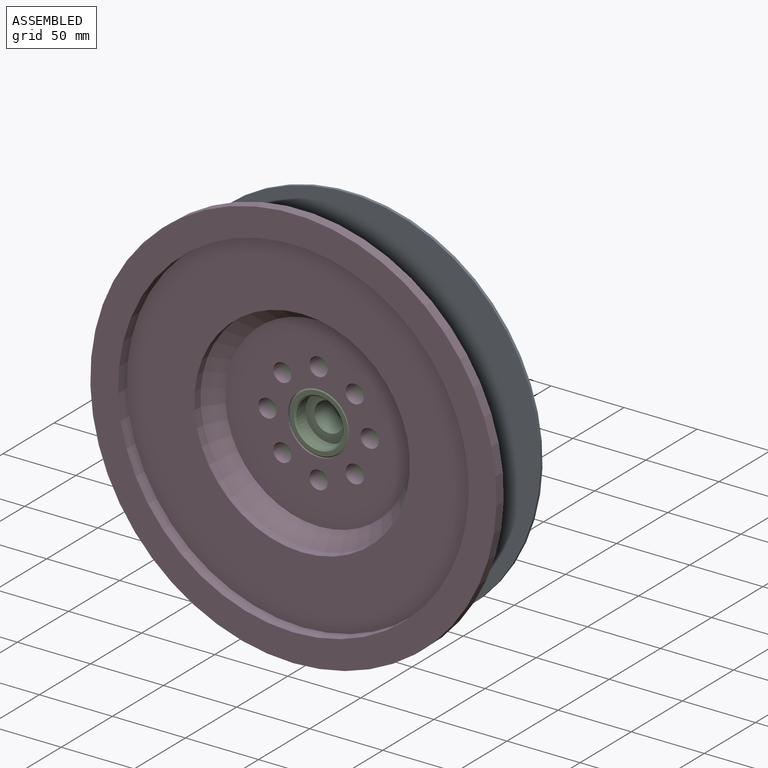
[diagram: assembled view]
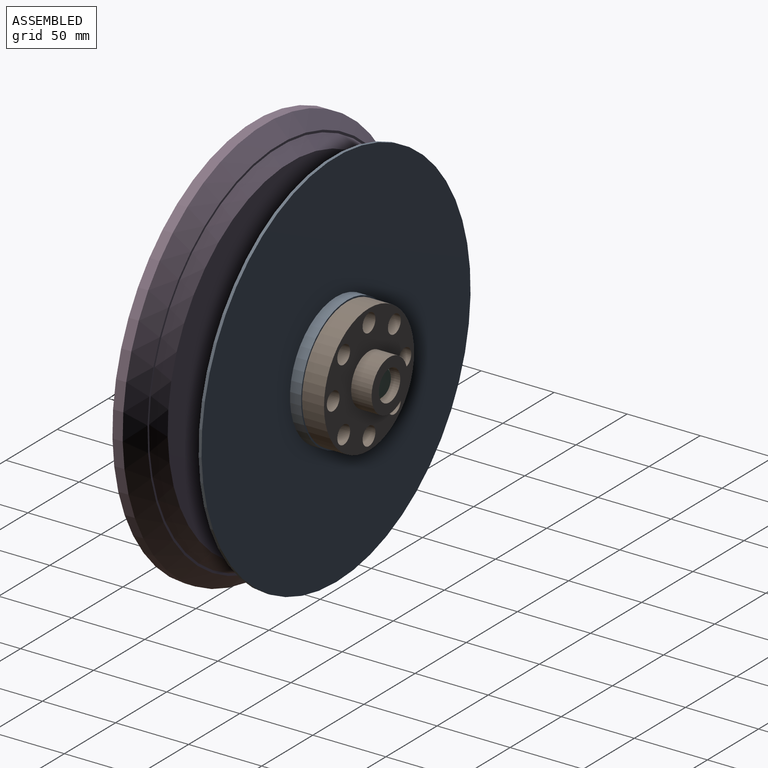
[diagram: assembled view, second angle]
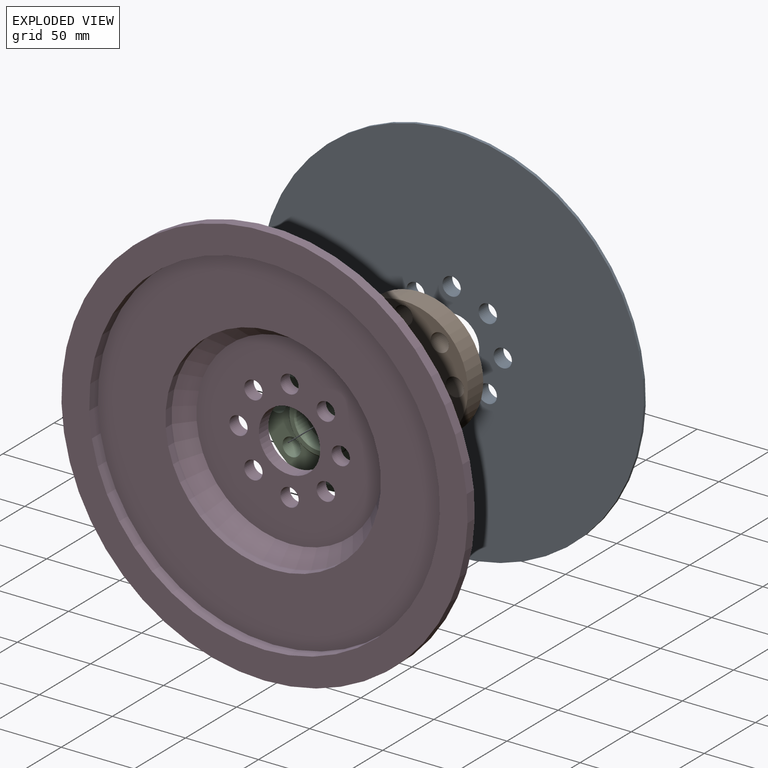
[diagram: exploded view]
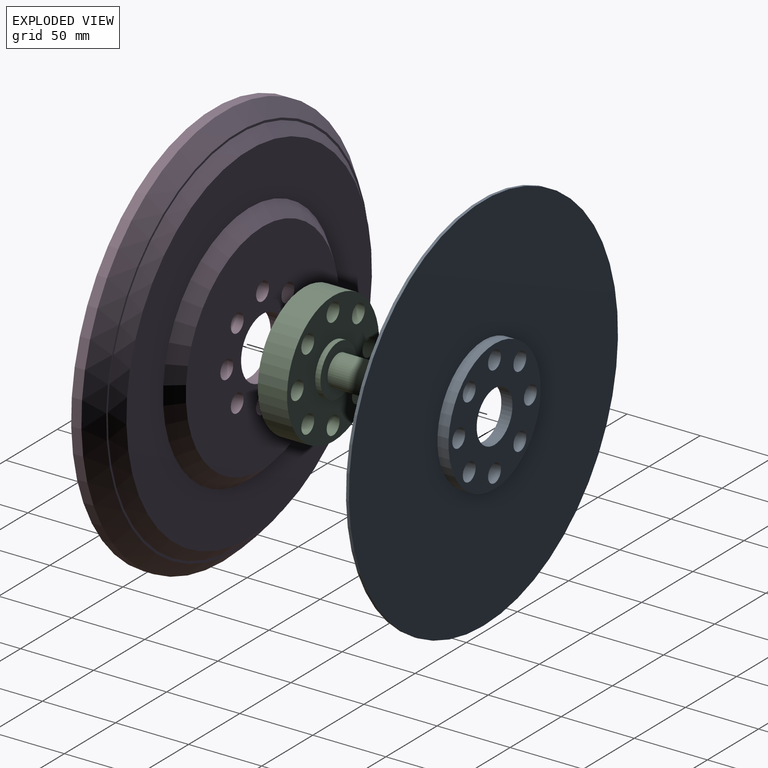
[diagram: exploded view, second angle]
ASSEMBLY  parts=4 mates=4
PART A: 16 faces, bbox 263x9.6x263 mm
  f0: plane 42x42mm, normal (0,1,0), area 423.3mm2, adj f2,f13
  f1: cylinder r=6.25mm len=12.5mm, axis (0,1,0), area 377mm2, adj f11,f14
  f2: cylinder r=17.5mm len=35mm, axis (0,1,0), area 835.7mm2, adj f0,f11
  f3: cylinder r=6.25mm len=12.5mm, axis (0,1,0), area 377mm2, adj f11,f14
  f4: cylinder r=6.25mm len=12.5mm, axis (0,1,0), area 377mm2, adj f11,f14
  f5: cylinder r=6.25mm len=12.5mm, axis (0,1,0), area 377mm2, adj f11,f14
  f6: cylinder r=6.25mm len=12.5mm, axis (0,1,0), area 377mm2, adj f11,f14
  f7: cylinder r=6.25mm len=12.5mm, axis (0,1,0), area 377mm2, adj f11,f14
  f8: cylinder r=6.25mm len=12.5mm, axis (0,1,0), area 377mm2, adj f11,f14
  f9: cylinder r=6.25mm len=12.5mm, axis (0,1,0), area 377mm2, adj f11,f14
  f10: cylinder r=45mm len=90mm, axis (0,1,0), area 2148.8mm2, adj f11,f15
  f11: plane 90x90mm, normal (0,-1,0), area 4417.9mm2, adj f1,f2,f3,f4,f5,f6,f7,f8
  f12: cylinder r=131.5mm len=263mm, axis (0,-1,0), area 1652.5mm2, adj f14,f15
  f13: cylinder r=21mm len=42mm, axis (0,-1,0), area 263.9mm2, adj f0,f14
  f14: plane 263x263mm, normal (0,1,0), area 51958mm2, adj f1,f3,f4,f5,f6,f7,f8,f9
  f15: plane 263x263mm, normal (0,-1,0), area 47963.5mm2, adj f10,f12
PART B: 16 faces, bbox 88x35x88 mm
  f0: cylinder r=44mm len=88mm, axis (0,-1,0), area 4146.9mm2, adj f10,f11
  f1: cylinder r=6.25mm len=15mm, axis (0,-1,0), area 589mm2, adj f10,f11
  f2: cylinder r=6.25mm len=15mm, axis (0,-1,0), area 589mm2, adj f10,f11
  f3: cylinder r=6.25mm len=15mm, axis (0,-1,0), area 589mm2, adj f10,f11
  f4: cylinder r=6.25mm len=15mm, axis (0,-1,0), area 589mm2, adj f10,f11
  f5: cylinder r=6.25mm len=15mm, axis (0,-1,0), area 589mm2, adj f10,f11
  f6: cylinder r=6.25mm len=15mm, axis (0,-1,0), area 589mm2, adj f10,f11
  f7: cylinder r=6.25mm len=15mm, axis (0,-1,0), area 589mm2, adj f10,f11
  f8: cylinder r=6.25mm len=15mm, axis (0,-1,0), area 589mm2, adj f10,f11
  f9: cylinder r=10.5mm len=35mm, axis (0,-1,0), area 2309.1mm2, adj f13,f15
  f10: plane 88x88mm, normal (0,1,0), area 4138.3mm2, adj f0,f1,f2,f3,f4,f5,f6,f7
  f11: plane 88x88mm, normal (0,-1,0), area 4138.3mm2, adj f0,f1,f2,f3,f4,f5,f6,f7
  f12: cylinder r=17.5mm len=35mm, axis (0,1,0), area 659.7mm2, adj f11,f13
  f13: plane 35x35mm, normal (0,-1,0), area 615.8mm2, adj f9,f12
  f14: cylinder r=17.5mm len=35mm, axis (0,-1,0), area 1539.4mm2, adj f10,f15
  f15: plane 35x35mm, normal (0,1,0), area 615.8mm2, adj f9,f14
PART C: 24 faces, bbox 90x62.6x90 mm
  f0: cylinder r=10.5mm len=28mm, axis (0,-1,0), area 1847.3mm2, adj f2,f4
  f1: plane 17x17mm, normal (0,1,0), area 227mm2, adj f2
  f2: cone r=10.5mm half-angle=45deg, axis (0,-1,0), area 168.8mm2, adj f0,f1
  f3: cylinder r=17.5mm len=35mm, axis (0,1,0), area 395.8mm2, adj f4,f7
  f4: plane 35x35mm, normal (0,1,0), area 615.8mm2, adj f0,f3
  f5: cylinder r=45mm len=90mm, axis (0,1,0), area 5654.9mm2, adj f6,f7
  f6: plane 90x90mm, normal (0,-1,0), area 3994.5mm2, adj f5,f8,f9,f10,f11,f12,f13,f14
  f7: plane 90x90mm, normal (0,1,0), area 4417.9mm2, adj f3,f5,f8,f9,f10,f11,f12,f13
  f8: cylinder r=6.25mm len=20mm, axis (0,-1,0), area 785.4mm2, adj f6,f7
  f9: cylinder r=6.25mm len=20mm, axis (0,-1,0), area 785.4mm2, adj f6,f7
  f10: cylinder r=6.25mm len=20mm, axis (0,-1,0), area 785.4mm2, adj f6,f7
  f11: cylinder r=6.25mm len=20mm, axis (0,-1,0), area 785.4mm2, adj f6,f7
  f12: cylinder r=6.25mm len=20mm, axis (0,-1,0), area 785.4mm2, adj f6,f7
  f13: cylinder r=6.25mm len=20mm, axis (0,-1,0), area 785.4mm2, adj f6,f7
  f14: cylinder r=6.25mm len=20mm, axis (0,-1,0), area 785.4mm2, adj f6,f7
  f15: cylinder r=6.25mm len=20mm, axis (0,-1,0), area 785.4mm2, adj f6,f7
  f16: cylinder r=21mm len=42mm, axis (0,1,0), area 1055.6mm2, adj f6,f20
  f17: plane 40x40mm, normal (0,-1,0), area 348.7mm2, adj f20,f21
  f18: cylinder r=16mm len=32mm, axis (0,-1,0), area 904.8mm2, adj f19,f21
  f19: plane 32x32mm, normal (0,-1,0), area 490.1mm2, adj f18,f22
  f20: cone r=20mm half-angle=45deg, axis (0,1,0), area 182.2mm2, adj f16,f17
  f21: cone r=16mm half-angle=45deg, axis (0,-1,0), area 146.6mm2, adj f17,f18
  f22: cylinder r=10mm len=20mm, axis (0,-1,0), area 1131mm2, adj f19,f23
  f23: plane 20x20mm, normal (0,-1,0), area 314.2mm2, adj f22
PART D: 22 faces, bbox 278x33.7x278 mm
  f0: plane 127.5x127.5mm, normal (0,-1,0), area 10400.4mm2, adj f1,f2,f3,f4,f5,f6,f7,f8
  f1: cylinder r=6.25mm len=12.5mm, axis (0,1,0), area 361.3mm2, adj f0,f10
  f2: cylinder r=21mm len=42mm, axis (0,1,0), area 1213.9mm2, adj f0,f10
  f3: cylinder r=6.25mm len=12.5mm, axis (0,1,0), area 361.3mm2, adj f0,f10
  f4: cylinder r=6.25mm len=12.5mm, axis (0,1,0), area 361.3mm2, adj f0,f10
  f5: cylinder r=6.25mm len=12.5mm, axis (0,1,0), area 361.3mm2, adj f0,f10
  f6: cylinder r=6.25mm len=12.5mm, axis (0,1,0), area 361.3mm2, adj f0,f10
  f7: cylinder r=6.25mm len=12.5mm, axis (0,1,0), area 361.3mm2, adj f0,f10
  f8: cylinder r=6.25mm len=12.5mm, axis (0,1,0), area 361.3mm2, adj f0,f10
  f9: cylinder r=6.25mm len=12.5mm, axis (0,1,0), area 361.3mm2, adj f0,f10
  f10: plane 150x150mm, normal (0,1,0), area 15304.3mm2, adj f1,f2,f3,f4,f5,f6,f7,f8
  f11: plane 240x240mm, normal (0,1,0), area 22966.2mm2, adj f14,f20
  f12: cylinder r=73.75mm len=147.5mm, axis (0,1,0), area 2780.3mm2, adj f13,f15
  f13: plane 240x240mm, normal (0,-1,0), area 28151.6mm2, adj f12,f16
  f14: cone r=84.2mm half-angle=45deg, axis (0,-1,0), area 6507.2mm2, adj f10,f11
  f15: cone r=63.75mm half-angle=45deg, axis (0,-1,0), area 6109mm2, adj f0,f12
  f16: cylinder r=120mm len=240mm, axis (0,1,0), area 6408.8mm2, adj f13,f18
  f17: cylinder r=139mm len=278mm, axis (0,1,0), area 6113.5mm2, adj f18,f21
  f18: plane 278x278mm, normal (0,-1,0), area 15459.8mm2, adj f16,f17
  f19: plane 258x258mm, normal (0,1,0), area 1208.7mm2, adj f20,f21
  f20: cone r=127.5mm half-angle=45deg, axis (0,-1,0), area 8247.1mm2, adj f11,f19
  f21: cone r=139mm half-angle=45deg, axis (0,-1,0), area 11906.9mm2, adj f17,f19
PLACE A rot(axis=(1,0,0),180deg) t=(0.16,-39.02,-0.73)mm
PLACE B t=(0.16,-31.42,-0.73)mm fixed
PLACE C t=(0.16,-37.42,-0.73)mm
PLACE D t=(0.16,-61.02,-0.73)mm
MATE slider C.f0 <-> B.f9  axis (0,-1,0) through (0.16,-37.42,-0.73)mm
MATE revolute D.f2 <-> C.f16  axis (0,1,0) through (0.16,-61.02,-0.73)mm
MATE slider D.f2 <-> C.f5  axis (0,1,0) through (0.16,-61.02,-0.73)mm
MATE slider B.f0 <-> A.f10  axis (0,-1,0) through (0.16,-31.42,-0.73)mm
